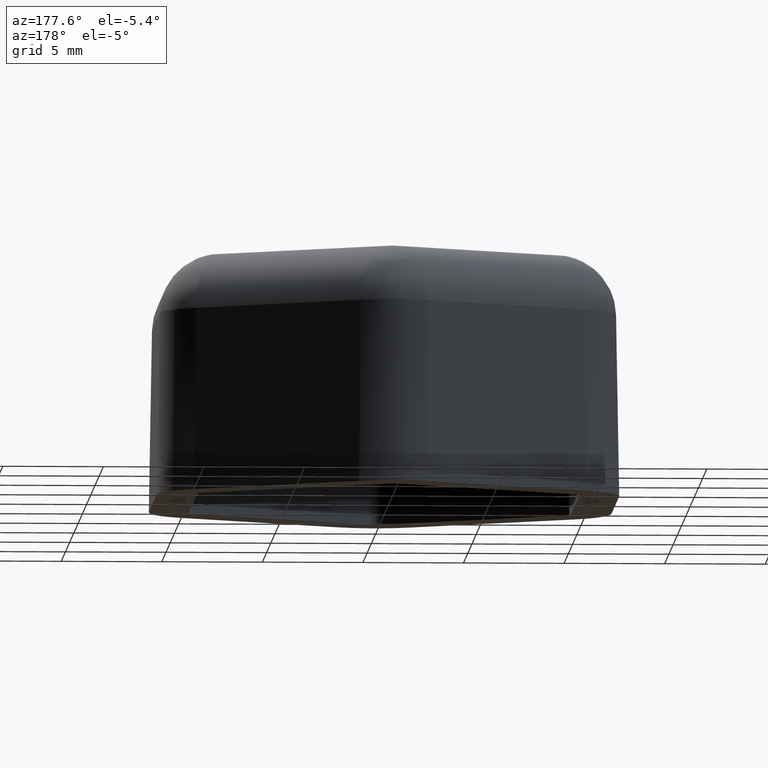
[diagram: clean part render]
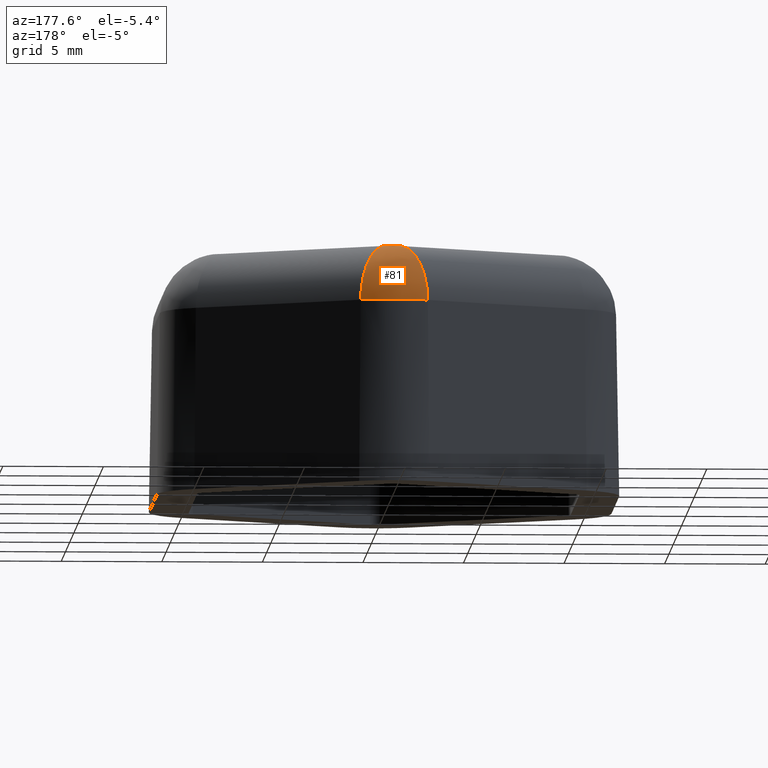
[diagram: same view with one face highlighted and labeled with its STEP entity id]
A machine part, auxiliary view. The second image highlights one B-rep face of the part: STEP entity #81.
In plain terms, the highlighted face is a freeform B-spline surface patch.
Its self-contained STEP definition (entity closure, byte-faithful):
#81 = ADVANCED_FACE( '', ( #128 ), #129, .T. );
#128 = FACE_OUTER_BOUND( '', #207, .T. );
#129 = ( B_SPLINE_SURFACE( 3, 3, ( ( #209, #210, #211, #212 ), ( #213, #214, #215, #216 ), ( #217, #218, #219, #220 ), ( #221, #222, #223, #224 ) ), .UNSPECIFIED., .F., .F., .F. )B_SPLINE_SURFACE_WITH_KNOTS( ( 4, 4 ), ( 4, 4 ), ( 1.04719755119660, 2.09439510239320 ), ( -1.57079632679490, -0.0174532925199486 ), .UNSPECIFIED. )RATIONAL_B_SPLINE_SURFACE( ( ( 1.00000000000000, 0.910683602522959, 0.910683602522959, 1.00000000000000 ), ( 0.808833632769455, 0.736591526532220, 0.736591526532220, 0.808833632769455 ), ( 0.808833632769455, 0.736591526532220, 0.736591526532220, 0.808833632769455 ), ( 1.00000000000000, 0.910683602522959, 0.910683602522959, 1.00000000000000 ) ) )BOUNDED_SURFACE(  )REPRESENTATION_ITEM( '' )GEOMETRIC_REPRESENTATION_ITEM(  )SURFACE(  ) );
#207 = EDGE_LOOP( '', ( #475, #476, #477, #478 ) );
#209 = CARTESIAN_POINT( '', ( -1.67099525849175, 12.1318529939484, 9.05235721931186 ) );
#210 = CARTESIAN_POINT( '', ( -0.611626714211330, 12.7434797081597, 9.05235721931185 ) );
#211 = CARTESIAN_POINT( '', ( 0.611626714211320, 12.7434797081597, 9.05235721931185 ) );
#212 = CARTESIAN_POINT( '', ( 1.67099525849174, 12.1318529939484, 9.05235721931186 ) );
#213 = CARTESIAN_POINT( '', ( -1.65587156325873, 12.1056579854066, 10.7852290585414 ) );
#214 = CARTESIAN_POINT( '', ( -0.606091057556950, 12.7117490429636, 10.7852290585414 ) );
#215 = CARTESIAN_POINT( '', ( 0.606091057556941, 12.7117490429636, 10.7852290585414 ) );
#216 = CARTESIAN_POINT( '', ( 1.65587156325872, 12.1056579854066, 10.7852290585414 ) );
#217 = CARTESIAN_POINT( '', ( -1.03779161786075, 11.0351121168379, 12.0000000000000 ) );
#218 = CARTESIAN_POINT( '', ( -0.379858095971591, 11.4149702128095, 12.0000000000000 ) );
#219 = CARTESIAN_POINT( '', ( 0.379858095971581, 11.4149702128095, 12.0000000000000 ) );
#220 = CARTESIAN_POINT( '', ( 1.03779161786074, 11.0351121168379, 12.0000000000000 ) );
#221 = CARTESIAN_POINT( '', ( -0.171223715757161, 9.53417248218615, 12.0000000000000 ) );
#222 = CARTESIAN_POINT( '', ( -0.0626722296974902, 9.59684471188363, 12.0000000000000 ) );
#223 = CARTESIAN_POINT( '', ( 0.0626722296974819, 9.59684471188363, 12.0000000000000 ) );
#224 = CARTESIAN_POINT( '', ( 0.171223715757153, 9.53417248218615, 12.0000000000000 ) );
#475 = ORIENTED_EDGE( '', *, *, #742, .T. );
#476 = ORIENTED_EDGE( '', *, *, #743, .F. );
#477 = ORIENTED_EDGE( '', *, *, #744, .F. );
#478 = ORIENTED_EDGE( '', *, *, #728, .F. );
#728 = EDGE_CURVE( '', #853, #854, #855, .F. );
#742 = EDGE_CURVE( '', #853, #879, #881, .T. );
#743 = EDGE_CURVE( '', #882, #879, #883, .T. );
#744 = EDGE_CURVE( '', #854, #882, #884, .T. );
#853 = VERTEX_POINT( '', #1027 );
#854 = VERTEX_POINT( '', #1028 );
#855 = CIRCLE( '', #1029, 0.342447431514314 );
#879 = VERTEX_POINT( '', #1059 );
#881 = CIRCLE( '', #1062, 3.00000000000000 );
#882 = VERTEX_POINT( '', #1063 );
#883 = CIRCLE( '', #1064, 3.34199051698349 );
#884 = CIRCLE( '', #1065, 3.00000000000000 );
#1027 = CARTESIAN_POINT( '', ( 0.171223715757153, 9.53417248218615, 12.0000000000000 ) );
#1028 = CARTESIAN_POINT( '', ( -0.171223715757164, 9.53417248218615, 12.0000000000000 ) );
#1029 = AXIS2_PLACEMENT_3D( '', #1218, #1219, #1220 );
#1059 = CARTESIAN_POINT( '', ( 1.67099525849174, 12.1318529939484, 9.05235721931185 ) );
#1062 = AXIS2_PLACEMENT_3D( '', #1246, #1247, #1248 );
#1063 = CARTESIAN_POINT( '', ( -1.67099525849175, 12.1318529939484, 9.05235721931186 ) );
#1064 = AXIS2_PLACEMENT_3D( '', #1249, #1250, #1251 );
#1065 = AXIS2_PLACEMENT_3D( '', #1252, #1253, #1254 );
#1218 = CARTESIAN_POINT( '', ( -4.93897457654047E-015, 9.23760430703402, 12.0000000000000 ) );
#1219 = DIRECTION( '', ( 1.22460635382238E-016, 0.000000000000000, -1.00000000000000 ) );
#1220 = DIRECTION( '', ( -1.00000000000000, 0.000000000000000, -1.22460635382238E-016 ) );
#1246 = CARTESIAN_POINT( '', ( 0.171223715757153, 9.53417248218615, 9.00000000000000 ) );
#1247 = DIRECTION( '', ( -0.866025403784438, 0.500000000000000, -1.06054021204601E-016 ) );
#1248 = DIRECTION( '', ( 0.500000000000000, 0.866025403784439, 6.12303176911189E-017 ) );
#1249 = CARTESIAN_POINT( '', ( -4.57800436873753E-015, 9.23760430703402, 9.05235721931186 ) );
#1250 = DIRECTION( '', ( 1.22460635382238E-016, 0.000000000000000, -1.00000000000000 ) );
#1251 = DIRECTION( '', ( -1.00000000000000, 0.000000000000000, -1.22460635382238E-016 ) );
#1252 = CARTESIAN_POINT( '', ( -0.171223715757164, 9.53417248218615, 9.00000000000000 ) );
#1253 = DIRECTION( '', ( -0.866025403784439, -0.500000000000000, -1.06054021204601E-016 ) );
#1254 = DIRECTION( '', ( -0.500000000000000, 0.866025403784439, -6.12303176911188E-017 ) );